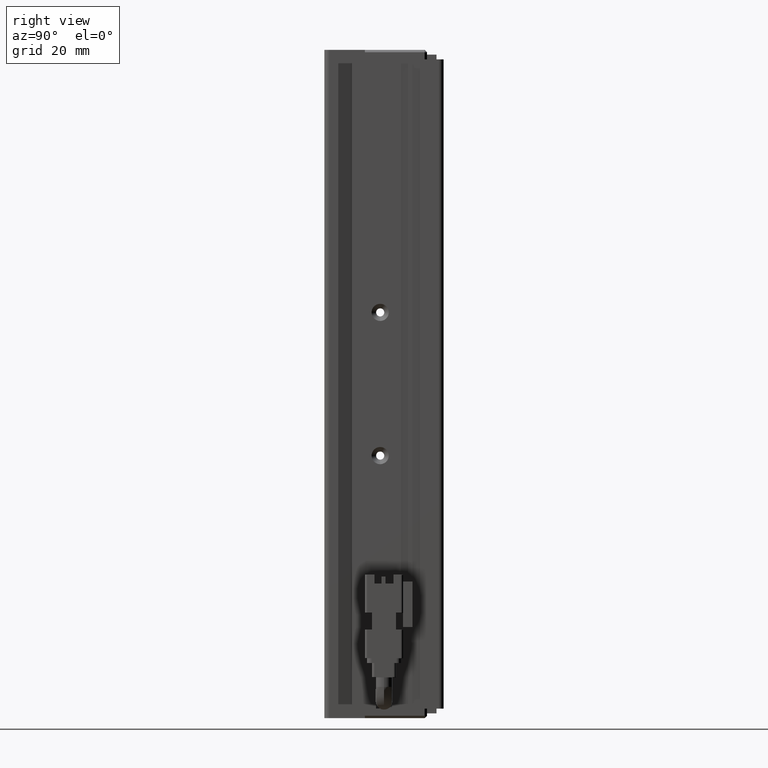
[diagram: clean part render]
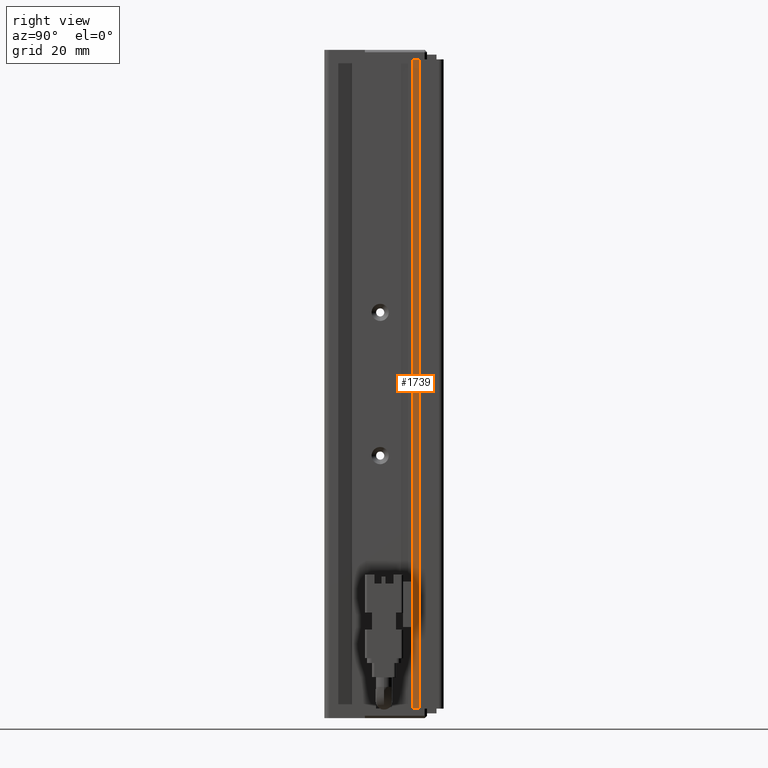
[diagram: same view with one face highlighted and labeled with its STEP entity id]
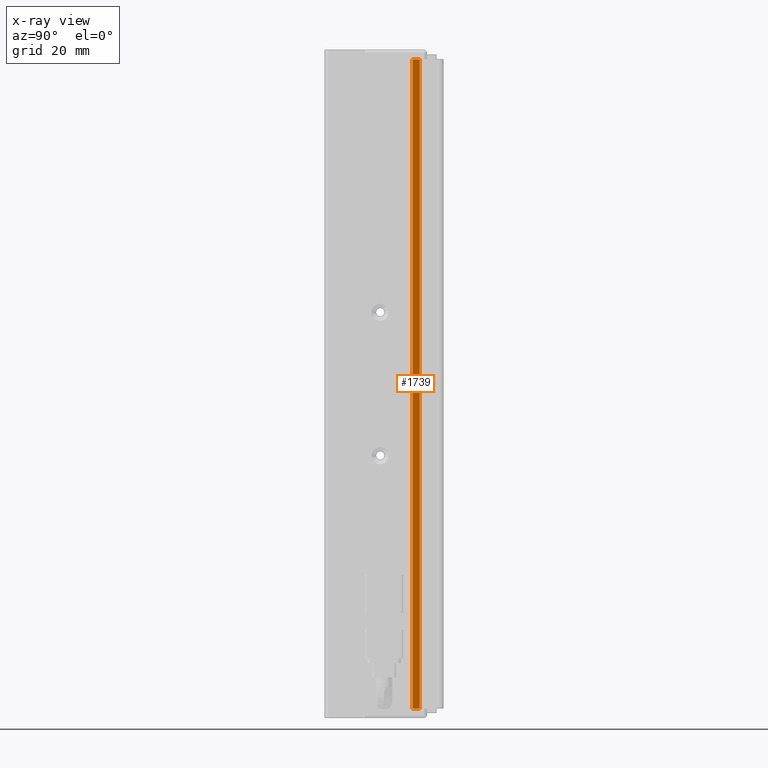
[diagram: x-ray of the same camera — body ghosted, the highlighted face saturated]
A machine part, right view. The second image highlights one B-rep face of the part: STEP entity #1739.
The next image is the same camera in x-ray: the body ghosted, the highlighted face saturated — about 0% of this face is hidden behind the body in this view.
In plain terms, the highlighted planar face has unit normal (1, 0, -0).
Its self-contained STEP definition (entity closure, byte-faithful):
#472 = EDGE_CURVE ( 'NONE', #32190, #16925, #24658, .T. ) ;
#1739 = ADVANCED_FACE ( 'NONE', ( #24152 ), #2455, .T. ) ;
#2225 = VERTEX_POINT ( 'NONE', #28029 ) ;
#2455 = PLANE ( 'NONE',  #17347 ) ;
#2950 = DIRECTION ( 'NONE',  ( -0.0000000000000000000, 0.0000000000000000000, -1.000000000000000000 ) ) ;
#3409 = ORIENTED_EDGE ( 'NONE', *, *, #24342, .T. ) ;
#4777 = EDGE_CURVE ( 'NONE', #32190, #2225, #34899, .T. ) ;
#5351 = DIRECTION ( 'NONE',  ( -0.0000000000000000000, 0.0000000000000000000, -1.000000000000000000 ) ) ;
#9202 = CARTESIAN_POINT ( 'NONE',  ( 55.42537974683542500, 29.19594479660387500, -183.0000000000000000 ) ) ;
#10091 = VECTOR ( 'NONE', #5351, 1000.000000000000000 ) ;
#11167 = CARTESIAN_POINT ( 'NONE',  ( 55.42537974683542500, 29.19594479660387200, -45.00000000000000000 ) ) ;
#11363 = DIRECTION ( 'NONE',  ( 0.0000000000000000000, 1.000000000000000000, 0.0000000000000000000 ) ) ;
#12775 = VECTOR ( 'NONE', #11363, 1000.000000000000000 ) ;
#13870 = CARTESIAN_POINT ( 'NONE',  ( 55.42537974683542500, 7.083797468354437600, -183.0000000000000000 ) ) ;
#14776 = ORIENTED_EDGE ( 'NONE', *, *, #4777, .F. ) ;
#16925 = VERTEX_POINT ( 'NONE', #19956 ) ;
#17105 = VERTEX_POINT ( 'NONE', #9202 ) ;
#17347 = AXIS2_PLACEMENT_3D ( 'NONE', #26020, #35583, #2950 ) ;
#17786 = LINE ( 'NONE', #11167, #10091 ) ;
#19956 = CARTESIAN_POINT ( 'NONE',  ( 55.42537974683542500, 29.19594479660387500, -47.00000000000000000 ) ) ;
#20267 = ORIENTED_EDGE ( 'NONE', *, *, #35637, .T. ) ;
#20454 = CARTESIAN_POINT ( 'NONE',  ( 55.42537974683542500, 30.69594479660386800, -47.00000000000000000 ) ) ;
#21172 = ORIENTED_EDGE ( 'NONE', *, *, #472, .T. ) ;
#21539 = VECTOR ( 'NONE', #33933, 1000.000000000000000 ) ;
#24152 = FACE_OUTER_BOUND ( 'NONE', #30245, .T. ) ;
#24342 = EDGE_CURVE ( 'NONE', #16925, #17105, #17786, .T. ) ;
#24658 = LINE ( 'NONE', #36644, #32236 ) ;
#26020 = CARTESIAN_POINT ( 'NONE',  ( 55.42537974683542500, 7.083797468354437600, -45.00000000000000000 ) ) ;
#28029 = CARTESIAN_POINT ( 'NONE',  ( 55.42537974683542500, 30.69594479660386800, -183.0000000000000000 ) ) ;
#30245 = EDGE_LOOP ( 'NONE', ( #20267, #14776, #21172, #3409 ) ) ;
#32190 = VERTEX_POINT ( 'NONE', #20454 ) ;
#32236 = VECTOR ( 'NONE', #36770, 1000.000000000000000 ) ;
#32702 = CARTESIAN_POINT ( 'NONE',  ( 55.42537974683542500, 30.69594479660386800, -45.00000000000000000 ) ) ;
#33933 = DIRECTION ( 'NONE',  ( 0.0000000000000000000, -0.0000000000000000000, -1.000000000000000000 ) ) ;
#34899 = LINE ( 'NONE', #32702, #21539 ) ;
#35583 = DIRECTION ( 'NONE',  ( 1.000000000000000000, 0.0000000000000000000, -0.0000000000000000000 ) ) ;
#35637 = EDGE_CURVE ( 'NONE', #17105, #2225, #36480, .T. ) ;
#36480 = LINE ( 'NONE', #13870, #12775 ) ;
#36644 = CARTESIAN_POINT ( 'NONE',  ( 55.42537974683542500, 7.083797468354437600, -47.00000000000000000 ) ) ;
#36770 = DIRECTION ( 'NONE',  ( -0.0000000000000000000, -1.000000000000000000, -0.0000000000000000000 ) ) ;